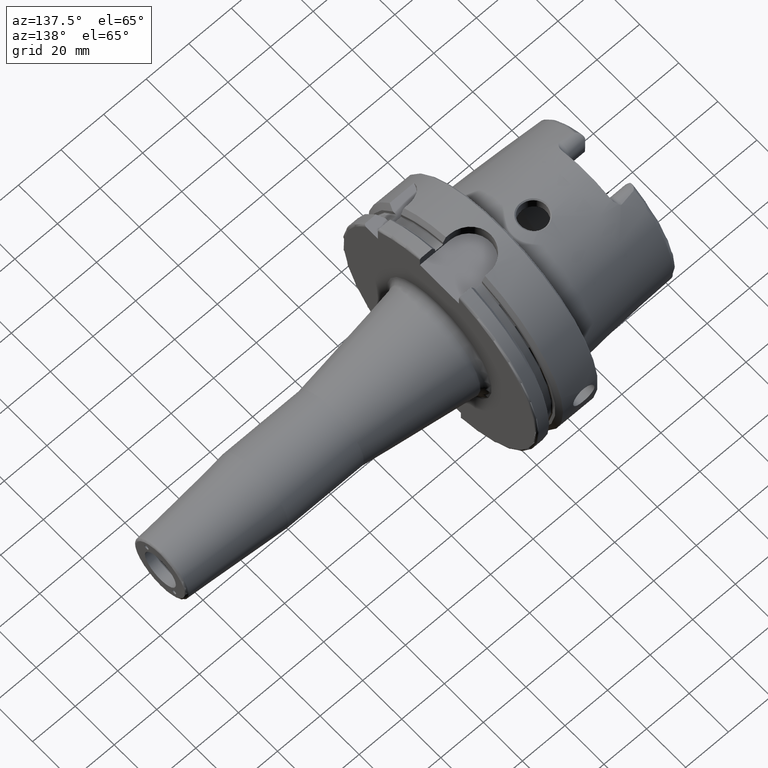
[diagram: clean part render]
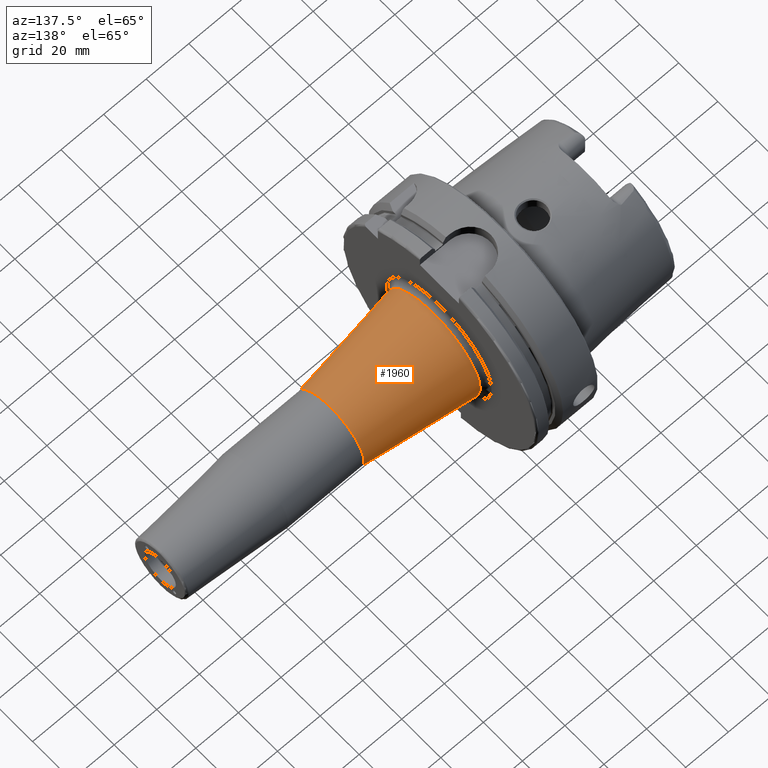
[diagram: same view with one face highlighted and labeled with its STEP entity id]
A machine part, auxiliary view. The second image highlights one B-rep face of the part: STEP entity #1960.
In plain terms, the highlighted conical surface has half-angle 8 deg.
Its self-contained STEP definition (entity closure, byte-faithful):
#215=FACE_OUTER_BOUND('',#336,.T.);
#336=EDGE_LOOP('',(#1344,#1345,#1346,#1347,#1348));
#461=LINE('',#3008,#567);
#567=VECTOR('',#2402,20.583791284911);
#676=CIRCLE('',#2111,23.8046385770459);
#679=CIRCLE('',#2114,23.8046385770459);
#680=CIRCLE('',#2116,17.);
#807=VERTEX_POINT('',#2998);
#808=VERTEX_POINT('',#2999);
#810=VERTEX_POINT('',#3006);
#1014=EDGE_CURVE('',#807,#808,#676,.T.);
#1017=EDGE_CURVE('',#808,#807,#679,.T.);
#1018=EDGE_CURVE('',#810,#810,#680,.T.);
#1019=EDGE_CURVE('',#810,#807,#461,.T.);
#1344=ORIENTED_EDGE('',*,*,#1018,.F.);
#1345=ORIENTED_EDGE('',*,*,#1019,.T.);
#1346=ORIENTED_EDGE('',*,*,#1017,.F.);
#1347=ORIENTED_EDGE('',*,*,#1014,.F.);
#1348=ORIENTED_EDGE('',*,*,#1019,.F.);
#1938=CONICAL_SURFACE('',#2115,20.583791284911,0.139626340159547);
#1960=ADVANCED_FACE('',(#215),#1938,.T.);
#2111=AXIS2_PLACEMENT_3D('',#3000,#2390,#2391);
#2114=AXIS2_PLACEMENT_3D('',#3004,#2396,#2397);
#2115=AXIS2_PLACEMENT_3D('',#3005,#2398,#2399);
#2116=AXIS2_PLACEMENT_3D('',#3007,#2400,#2401);
#2390=DIRECTION('center_axis',(-1.,0.,0.));
#2391=DIRECTION('ref_axis',(0.,-1.,-1.22464679914735E-16));
#2396=DIRECTION('center_axis',(-1.,0.,0.));
#2397=DIRECTION('ref_axis',(0.,-1.,-1.22464679914735E-16));
#2398=DIRECTION('center_axis',(-1.,0.,0.));
#2399=DIRECTION('ref_axis',(0.,1.,0.));
#2400=DIRECTION('center_axis',(1.,0.,0.));
#2401=DIRECTION('ref_axis',(0.,0.,-1.));
#2402=DIRECTION('',(-0.99026806874157,-0.139173100960066,-1.70437892618156E-17));
#2998=CARTESIAN_POINT('',(31.5824806971198,-23.8046385770459,-2.91522744382389E-15));
#2999=CARTESIAN_POINT('',(31.5824806971198,-2.91522744382389E-15,-23.8046385770459));
#3000=CARTESIAN_POINT('Origin',(31.5824806971198,0.,0.));
#3004=CARTESIAN_POINT('Origin',(31.5824806971198,0.,0.));
#3005=CARTESIAN_POINT('Origin',(54.5,0.,0.));
#3006=CARTESIAN_POINT('',(80.,-17.,-2.0818995585505E-15));
#3007=CARTESIAN_POINT('Origin',(80.,0.,0.));
#3008=CARTESIAN_POINT('',(54.5,-20.583791284911,-2.52078741113834E-15));